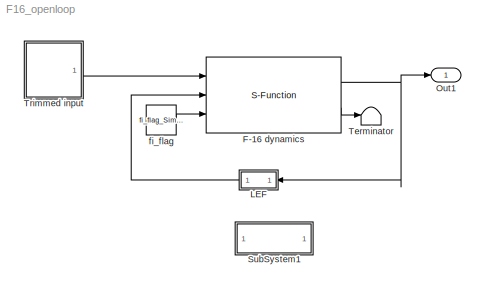
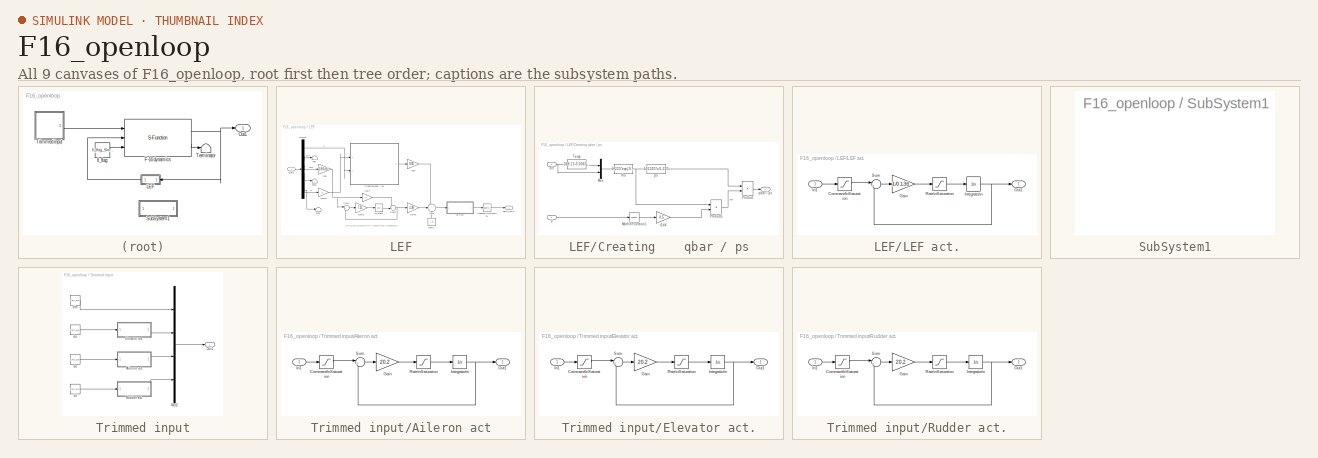
[diagram: thumbnail index - all 9 canvases of the model, root first then tree order]
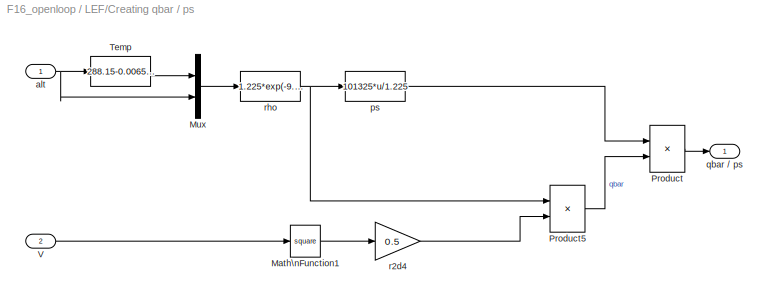
MODEL F16_openloop
KIND model
BLOCK [S-Function] F-16 dynamics
  FunctionName = F16_dyn
  MaskDisplay = image(imread('aerodata/f16.jpg'))
  MaskIconFrame = on
  MaskIconOpaque = on
  MaskIconRotate = none
  MaskIconUnits = autoscale
  Parameters = init_x
  Ports = [3, 2]
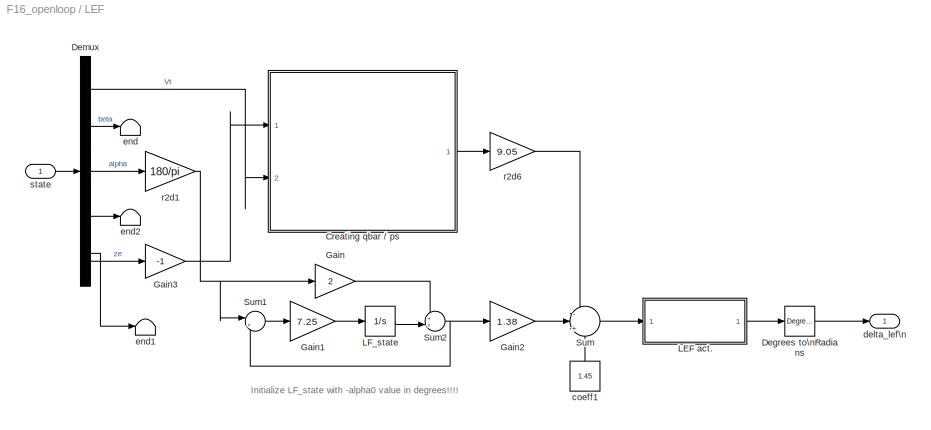
BLOCK [SubSystem] LEF
  MaskDisplay = port_label('output', 1, 'dlef')
  MaskIconFrame = on
  MaskIconOpaque = on
  MaskIconRotate = none
  MaskIconUnits = autoscale
  MinAlgLoopOccurrences = off
  Ports = [1, 1]
  RTWSystemCode = Auto
BLOCK [SubSystem] LEF/Creating    qbar // ps
  MinAlgLoopOccurrences = off
  Ports = [2, 1]
  RTWSystemCode = Auto
BLOCK [Math] LEF/Creating    qbar // ps/Math\nFunction1
  Operator = square
  OutDataType = sfix(16)
  OutScaling = 2^0
  Ports = [1, 1]
BLOCK [Mux] LEF/Creating    qbar // ps/Mux
  DisplayOption = bar
  Inputs = 2
  Ports = [2, 1]
BLOCK [Product] LEF/Creating    qbar // ps/Product
  Inputs = /*
  OutDataType = sfix(16)
  OutScaling = 2^0
  Ports = [2, 1]
  RndMeth = Floor
BLOCK [Product] LEF/Creating    qbar // ps/Product5
  Inputs = **
  OutDataType = sfix(16)
  OutScaling = 2^0
  Ports = [2, 1]
  RndMeth = Floor
BLOCK [Fcn] LEF/Creating    qbar // ps/Temp
  Expr = 288.15-0.0065*u
BLOCK [Inport] LEF/Creating    qbar // ps/V
  IconDisplay = Port number
  OutDataType = sfix(16)
  OutScaling = 2^0
  Port = 2
BLOCK [Inport] LEF/Creating    qbar // ps/alt
  IconDisplay = Port number
  OutDataType = sfix(16)
  OutScaling = 2^0
BLOCK [Fcn] LEF/Creating    qbar // ps/ps
  Expr = 101325*u/1.225
BLOCK [Outport] LEF/Creating    qbar // ps/qbar // ps
  IconDisplay = Port number
  OutDataType = sfix(16)
  OutScaling = 2^0
BLOCK [Gain] LEF/Creating    qbar // ps/r2d4
  Gain = 0.5
  OutDataType = sfix(16)
  OutScaling = 2^0
  ParameterDataType = sfix(16)
  ParameterScaling = 2^0
BLOCK [Fcn] LEF/Creating    qbar // ps/rho
  Expr = 1.225*exp(-9.80665*u(2)/(287.05*u(1)))
BLOCK [Reference] LEF/Degrees to\nRadians  REF=simulink_extras/Transformations/Degrees to\nRadians
  Ports = [1, 1]
  ShowPortLabels = FromPortIcon
  SourceBlock = simulink_extras/Transformations/Degrees to\nRadians
  SourceType = DegreesToRadians
  SystemSampleTime = -1
BLOCK [Demux] LEF/Demux
  Outputs = [1 1 1 9 1 1]
  Ports = [1, 6]
BLOCK [Gain] LEF/Gain
  Gain = 2
  OutDataType = sfix(16)
  OutScaling = 2^0
  ParameterDataType = sfix(16)
  ParameterScaling = 2^0
BLOCK [Gain] LEF/Gain1
  Gain = 7.25
  OutDataType = sfix(16)
  OutScaling = 2^0
  ParameterDataType = sfix(16)
  ParameterScaling = 2^0
BLOCK [Gain] LEF/Gain2
  Gain = 1.38
  OutDataType = sfix(16)
  OutScaling = 2^0
  ParameterDataType = sfix(16)
  ParameterScaling = 2^0
BLOCK [Gain] LEF/Gain3
  Gain = -1
  OutDataType = sfix(16)
  OutScaling = 2^0
  ParameterDataType = sfix(16)
  ParameterScaling = 2^0
BLOCK [SubSystem] LEF/LEF act.
  MinAlgLoopOccurrences = off
  Ports = [1, 1]
  RTWSystemCode = Auto
BLOCK [Saturate] LEF/LEF act./Command\nSaturation
  LowerLimit = 0
  UpperLimit = 25
BLOCK [Gain] LEF/LEF act./Gain
  Gain = 1/0.136
  OutDataType = sfix(16)
  OutScaling = 2^0
  ParameterDataType = sfix(16)
  ParameterScaling = 2^0
BLOCK [Inport] LEF/LEF act./In1
  IconDisplay = Port number
  OutDataType = sfix(16)
  OutScaling = 2^0
BLOCK [Integrator] LEF/LEF act./Integrator\n
  InitialCondition = init_dlef*180/pi
  LowerSaturationLimit = -25
  Ports = [1, 1]
  UpperSaturationLimit = 25
BLOCK [Outport] LEF/LEF act./Out1
  IconDisplay = Port number
  OutDataType = sfix(16)
  OutScaling = 2^0
BLOCK [Saturate] LEF/LEF act./Rate\nSaturation
  LowerLimit = -25
  UpperLimit = 25
BLOCK [Sum] LEF/LEF act./Sum
  IconShape = round
  Inputs = |+-
  OutDataType = sfix(16)
  OutScaling = 2^0
  Ports = [2, 1]
BLOCK [Integrator] LEF/LF_state
  InitialCondition = -init_x(3)*180/pi
  Ports = [1, 1]
BLOCK [Sum] LEF/Sum
  IconShape = round
  Inputs = -|+|+
  OutDataType = sfix(16)
  OutScaling = 2^0
  Ports = [3, 1]
BLOCK [Sum] LEF/Sum1
  IconShape = round
  Inputs = |+-
  OutDataType = sfix(16)
  OutScaling = 2^0
  Ports = [2, 1]
BLOCK [Sum] LEF/Sum2
  IconShape = round
  Inputs = ++|
  OutDataType = sfix(16)
  OutScaling = 2^0
  Ports = [2, 1]
BLOCK [Constant] LEF/coeff1
  OutDataType = sfix(16)
  OutScaling = 2^0
  Value = 1.45
BLOCK [Outport] LEF/delta_lef\n
  IconDisplay = Port number
  OutDataType = sfix(16)
  OutScaling = 2^0
BLOCK [Terminator] LEF/end
BLOCK [Terminator] LEF/end1
BLOCK [Terminator] LEF/end2
BLOCK [Gain] LEF/r2d1
  Gain = 180/pi
  OutDataType = sfix(16)
  OutScaling = 2^0
  ParameterDataType = sfix(16)
  ParameterScaling = 2^0
BLOCK [Gain] LEF/r2d6
  Gain = 9.05
  OutDataType = sfix(16)
  OutScaling = 2^0
  ParameterDataType = sfix(16)
  ParameterScaling = 2^0
BLOCK [Inport] LEF/state
  IconDisplay = Port number
  OutDataType = sfix(16)
  OutScaling = 2^0
BLOCK [Outport] Out1
  IconDisplay = Port number
  OutDataType = sfix(16)
  OutScaling = 2^0
BLOCK [SubSystem] SubSystem1
  MaskDisplay = disp('F16_dyn.c');
  MaskIconFrame = on
  MaskIconOpaque = on
  MaskIconRotate = none
  MaskIconUnits = autoscale
  MinAlgLoopOccurrences = off
  OpenFcn = edit(fullfile(cd,'F16_dyn.c'))
  Ports = []
  RTWSystemCode = Auto
BLOCK [Terminator] Terminator
BLOCK [SubSystem] Trimmed input
  MaskDisplay = image(imread('aerodata\\f16cockpit.jpg'))
  MaskIconFrame = on
  MaskIconOpaque = on
  MaskIconRotate = none
  MaskIconUnits = autoscale
  MinAlgLoopOccurrences = off
  Ports = [0, 1]
  RTWSystemCode = Auto
BLOCK [SubSystem] Trimmed input/Aileron act
  MaskDisplay = port_label('output', 1, 'da')\nport_label('input', 1, 'da_ref')
  MaskIconFrame = on
  MaskIconOpaque = on
  MaskIconRotate = none
  MaskIconUnits = autoscale
  MinAlgLoopOccurrences = off
  Ports = [1, 1]
  RTWSystemCode = Auto
BLOCK [Saturate] Trimmed input/Aileron act/Command\nSaturation
  LowerLimit = -21.5*pi/180
  UpperLimit = 21.5*pi/180
BLOCK [Gain] Trimmed input/Aileron act/Gain
  Gain = 20.2
  OutDataType = sfix(16)
  OutScaling = 2^0
  ParameterDataType = sfix(16)
  ParameterScaling = 2^0
BLOCK [Inport] Trimmed input/Aileron act/In1
  IconDisplay = Port number
  OutDataType = sfix(16)
  OutScaling = 2^0
BLOCK [Integrator] Trimmed input/Aileron act/Integrator\n
  InitialCondition = init_u(3)
  LowerSaturationLimit = -21.5
  Ports = [1, 1]
  UpperSaturationLimit = 21.5
BLOCK [Outport] Trimmed input/Aileron act/Out1
  IconDisplay = Port number
  OutDataType = sfix(16)
  OutScaling = 2^0
BLOCK [Saturate] Trimmed input/Aileron act/Rate\nSaturation
  LowerLimit = -80*pi/180
  UpperLimit = 80*pi/180
BLOCK [Sum] Trimmed input/Aileron act/Sum
  IconShape = round
  Inputs = |+-
  OutDataType = sfix(16)
  OutScaling = 2^0
  Ports = [2, 1]
BLOCK [SubSystem] Trimmed input/Elevator act.
  MaskDisplay = port_label('output', 1, 'de')\nport_label('input', 1, 'de_ref')
  MaskIconFrame = on
  MaskIconOpaque = on
  MaskIconRotate = none
  MaskIconUnits = autoscale
  MinAlgLoopOccurrences = off
  Ports = [1, 1]
  RTWSystemCode = Auto
BLOCK [Saturate] Trimmed input/Elevator act./Command\nSaturation
  LowerLimit = -25*pi/180
  UpperLimit = 25*pi/180
BLOCK [Gain] Trimmed input/Elevator act./Gain
  Gain = 20.2
  OutDataType = sfix(16)
  OutScaling = 2^0
  ParameterDataType = sfix(16)
  ParameterScaling = 2^0
BLOCK [Inport] Trimmed input/Elevator act./In1
  IconDisplay = Port number
  OutDataType = sfix(16)
  OutScaling = 2^0
BLOCK [Integrator] Trimmed input/Elevator act./Integrator\n
  InitialCondition = init_u(2)
  LowerSaturationLimit = -25
  Ports = [1, 1]
  UpperSaturationLimit = 25
BLOCK [Outport] Trimmed input/Elevator act./Out1
  IconDisplay = Port number
  OutDataType = sfix(16)
  OutScaling = 2^0
BLOCK [Saturate] Trimmed input/Elevator act./Rate\nSaturation
  LowerLimit = -60*pi/180
  UpperLimit = 60*pi/180
BLOCK [Sum] Trimmed input/Elevator act./Sum
  IconShape = round
  Inputs = |+-
  OutDataType = sfix(16)
  OutScaling = 2^0
  Ports = [2, 1]
BLOCK [Mux] Trimmed input/Mux2
  DisplayOption = bar
  Ports = [4, 1]
BLOCK [Outport] Trimmed input/Out1
  IconDisplay = Port number
  OutDataType = sfix(16)
  OutScaling = 2^0
BLOCK [SubSystem] Trimmed input/Rudder act.
  MaskDisplay = port_label('output', 1, 'dr')\nport_label('input', 1, 'dr_ref')
  MaskIconFrame = on
  MaskIconOpaque = on
  MaskIconRotate = none
  MaskIconUnits = autoscale
  MinAlgLoopOccurrences = off
  Ports = [1, 1]
  RTWSystemCode = Auto
BLOCK [Saturate] Trimmed input/Rudder act./Command\nSaturation
  LowerLimit = -30*pi/180
  UpperLimit = 30*pi/180
BLOCK [Gain] Trimmed input/Rudder act./Gain
  Gain = 20.2
  OutDataType = sfix(16)
  OutScaling = 2^0
  ParameterDataType = sfix(16)
  ParameterScaling = 2^0
BLOCK [Inport] Trimmed input/Rudder act./In1
  IconDisplay = Port number
  OutDataType = sfix(16)
  OutScaling = 2^0
BLOCK [Integrator] Trimmed input/Rudder act./Integrator\n
  InitialCondition = init_u(4)
  LowerSaturationLimit = -25
  Ports = [1, 1]
  UpperSaturationLimit = 25
BLOCK [Outport] Trimmed input/Rudder act./Out1
  IconDisplay = Port number
  OutDataType = sfix(16)
  OutScaling = 2^0
BLOCK [Saturate] Trimmed input/Rudder act./Rate\nSaturation
  LowerLimit = -120*pi/180
  UpperLimit = 120*pi/180
BLOCK [Sum] Trimmed input/Rudder act./Sum
  IconShape = round
  Inputs = |+-
  OutDataType = sfix(16)
  OutScaling = 2^0
  Ports = [2, 1]
BLOCK [Constant] Trimmed input/da
  OutDataType = sfix(16)
  OutScaling = 2^0
  Value = init_u(3)
BLOCK [Constant] Trimmed input/de
  OutDataType = sfix(16)
  OutScaling = 2^0
  Value = init_u(2)
BLOCK [Constant] Trimmed input/dr
  OutDataType = sfix(16)
  OutScaling = 2^0
  Value = init_u(4)
BLOCK [Constant] Trimmed input/dth
  OutDataType = sfix(16)
  OutScaling = 2^0
  Value = init_u(1)
BLOCK [Constant] fi_flag
  OutDataType = sfix(16)
  OutScaling = 2^0
  Value = fi_flag_Simulink
ANNOTATION LEF: Initialize LF_state with -alpha0 value in degrees!!!!
NET F-16 dynamics:1 -> LEF:1, Out1:1
LINE F-16 dynamics:2 -> Terminator:1
LINE LEF/Creating    qbar // ps/Math\nFunction1:1 -> LEF/Creating    qbar // ps/r2d4:1
LINE LEF/Creating    qbar // ps/Mux:1 -> LEF/Creating    qbar // ps/rho:1
LINE LEF/Creating    qbar // ps/Product5:1 -> LEF/Creating    qbar // ps/Product:2
LINE LEF/Creating    qbar // ps/Product:1 -> LEF/Creating    qbar // ps/qbar // ps:1
LINE LEF/Creating    qbar // ps/Temp:1 -> LEF/Creating    qbar // ps/Mux:1
LINE LEF/Creating    qbar // ps/V:1 -> LEF/Creating    qbar // ps/Math\nFunction1:1
NET LEF/Creating    qbar // ps/alt:1 -> LEF/Creating    qbar // ps/Mux:2, LEF/Creating    qbar // ps/Temp:1
LINE LEF/Creating    qbar // ps/ps:1 -> LEF/Creating    qbar // ps/Product:1
LINE LEF/Creating    qbar // ps/r2d4:1 -> LEF/Creating    qbar // ps/Product5:2
NET LEF/Creating    qbar // ps/rho:1 -> LEF/Creating    qbar // ps/Product5:1, LEF/Creating    qbar // ps/ps:1
LINE LEF/Creating    qbar // ps:1 -> LEF/r2d6:1
LINE LEF/Degrees to\nRadians:1 -> LEF/delta_lef\n:1
LINE LEF/Demux:1 -> LEF/Creating    qbar // ps:2
LINE LEF/Demux:2 -> LEF/end:1
LINE LEF/Demux:3 -> LEF/r2d1:1
LINE LEF/Demux:4 -> LEF/end2:1
LINE LEF/Demux:5 -> LEF/Gain3:1
LINE LEF/Demux:6 -> LEF/end1:1
LINE LEF/Gain1:1 -> LEF/LF_state:1
LINE LEF/Gain2:1 -> LEF/Sum:2
LINE LEF/Gain3:1 -> LEF/Creating    qbar // ps:1
LINE LEF/Gain:1 -> LEF/Sum2:1
LINE LEF/LEF act./Command\nSaturation:1 -> LEF/LEF act./Sum:1
LINE LEF/LEF act./Gain:1 -> LEF/LEF act./Rate\nSaturation:1
LINE LEF/LEF act./In1:1 -> LEF/LEF act./Command\nSaturation:1
NET LEF/LEF act./Integrator\n:1 -> LEF/LEF act./Out1:1, LEF/LEF act./Sum:2
LINE LEF/LEF act./Rate\nSaturation:1 -> LEF/LEF act./Integrator\n:1
LINE LEF/LEF act./Sum:1 -> LEF/LEF act./Gain:1
LINE LEF/LEF act.:1 -> LEF/Degrees to\nRadians:1
LINE LEF/LF_state:1 -> LEF/Sum2:2
LINE LEF/Sum1:1 -> LEF/Gain1:1
NET LEF/Sum2:1 -> LEF/Gain2:1, LEF/Sum1:2
LINE LEF/Sum:1 -> LEF/LEF act.:1
LINE LEF/coeff1:1 -> LEF/Sum:3
NET LEF/r2d1:1 -> LEF/Gain:1, LEF/Sum1:1
LINE LEF/r2d6:1 -> LEF/Sum:1
LINE LEF/state:1 -> LEF/Demux:1
LINE LEF:1 -> F-16 dynamics:2
LINE Trimmed input/Aileron act/Command\nSaturation:1 -> Trimmed input/Aileron act/Sum:1
LINE Trimmed input/Aileron act/Gain:1 -> Trimmed input/Aileron act/Rate\nSaturation:1
LINE Trimmed input/Aileron act/In1:1 -> Trimmed input/Aileron act/Command\nSaturation:1
NET Trimmed input/Aileron act/Integrator\n:1 -> Trimmed input/Aileron act/Out1:1, Trimmed input/Aileron act/Sum:2
LINE Trimmed input/Aileron act/Rate\nSaturation:1 -> Trimmed input/Aileron act/Integrator\n:1
LINE Trimmed input/Aileron act/Sum:1 -> Trimmed input/Aileron act/Gain:1
LINE Trimmed input/Aileron act:1 -> Trimmed input/Mux2:3
LINE Trimmed input/Elevator act./Command\nSaturation:1 -> Trimmed input/Elevator act./Sum:1
LINE Trimmed input/Elevator act./Gain:1 -> Trimmed input/Elevator act./Rate\nSaturation:1
LINE Trimmed input/Elevator act./In1:1 -> Trimmed input/Elevator act./Command\nSaturation:1
NET Trimmed input/Elevator act./Integrator\n:1 -> Trimmed input/Elevator act./Out1:1, Trimmed input/Elevator act./Sum:2
LINE Trimmed input/Elevator act./Rate\nSaturation:1 -> Trimmed input/Elevator act./Integrator\n:1
LINE Trimmed input/Elevator act./Sum:1 -> Trimmed input/Elevator act./Gain:1
LINE Trimmed input/Elevator act.:1 -> Trimmed input/Mux2:2
LINE Trimmed input/Mux2:1 -> Trimmed input/Out1:1
LINE Trimmed input/Rudder act./Command\nSaturation:1 -> Trimmed input/Rudder act./Sum:1
LINE Trimmed input/Rudder act./Gain:1 -> Trimmed input/Rudder act./Rate\nSaturation:1
LINE Trimmed input/Rudder act./In1:1 -> Trimmed input/Rudder act./Command\nSaturation:1
NET Trimmed input/Rudder act./Integrator\n:1 -> Trimmed input/Rudder act./Out1:1, Trimmed input/Rudder act./Sum:2
LINE Trimmed input/Rudder act./Rate\nSaturation:1 -> Trimmed input/Rudder act./Integrator\n:1
LINE Trimmed input/Rudder act./Sum:1 -> Trimmed input/Rudder act./Gain:1
LINE Trimmed input/Rudder act.:1 -> Trimmed input/Mux2:4
LINE Trimmed input/da:1 -> Trimmed input/Aileron act:1
LINE Trimmed input/de:1 -> Trimmed input/Elevator act.:1
LINE Trimmed input/dr:1 -> Trimmed input/Rudder act.:1
LINE Trimmed input/dth:1 -> Trimmed input/Mux2:1
LINE Trimmed input:1 -> F-16 dynamics:1
LINE fi_flag:1 -> F-16 dynamics:3
note: NET lines group one-source signal fan-out (src -> all destinations, sorted); 1:1 wires keep LINE
